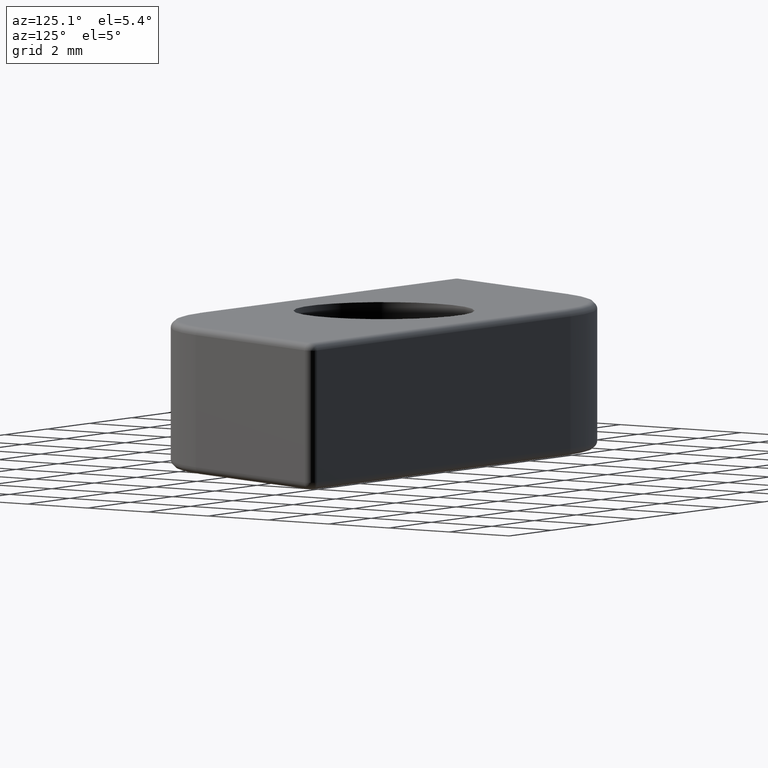
[diagram: clean part render]
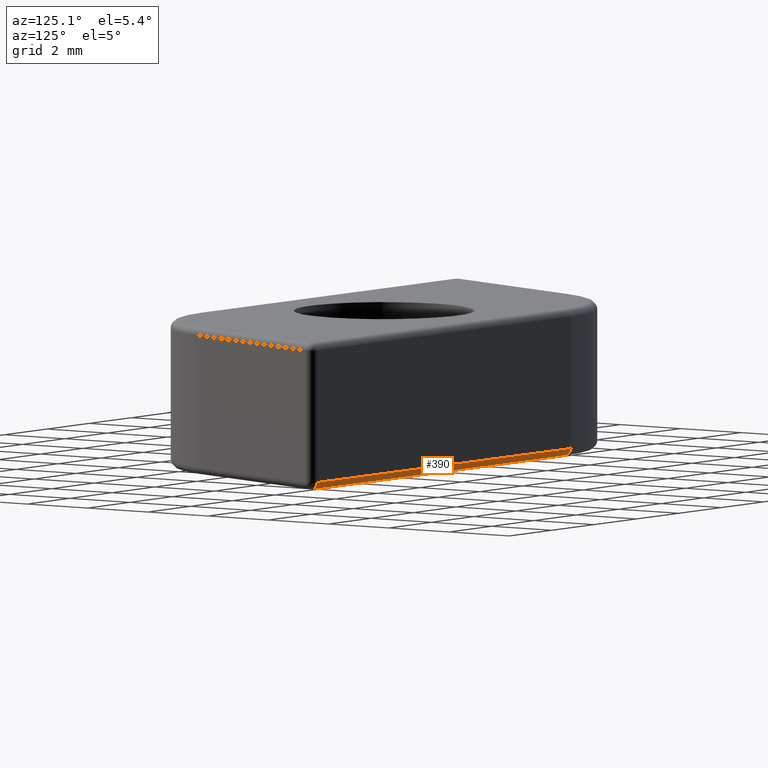
[diagram: same view with one face highlighted and labeled with its STEP entity id]
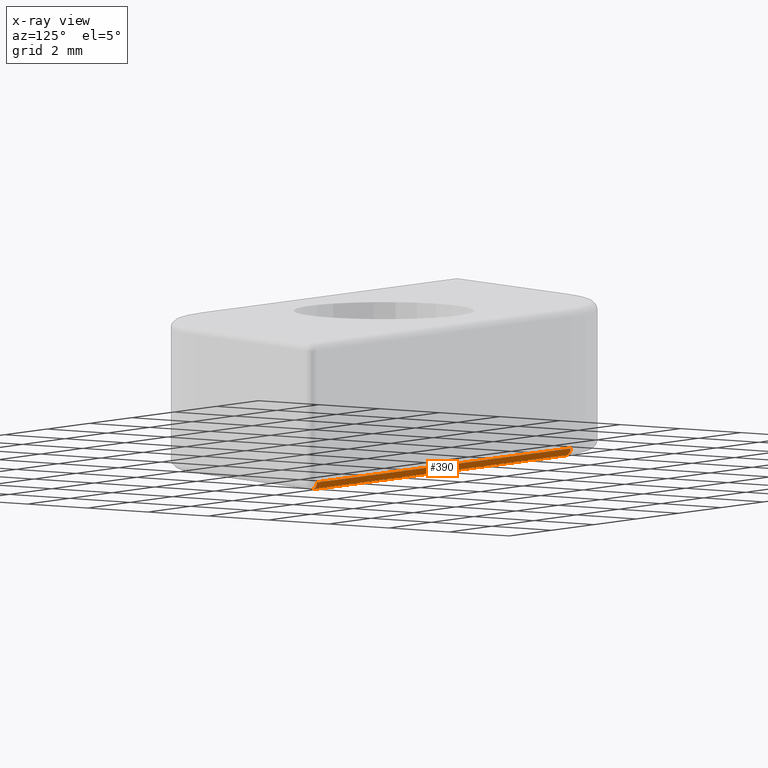
[diagram: x-ray of the same camera — body ghosted, the highlighted face saturated]
A machine part, auxiliary view. The second image highlights one B-rep face of the part: STEP entity #390.
The next image is the same camera in x-ray: the body ghosted, the highlighted face saturated — about 0% of this face is hidden behind the body in this view.
In plain terms, the highlighted cylindrical surface (edge-blend (fillet) strip) has radius 0.2 mm, axis along (-1, -0, 0).
Its self-contained STEP definition (entity closure, byte-faithful):
#37=LINE('',#710,#62);
#38=LINE('',#711,#63);
#62=VECTOR('',#586,10.);
#63=VECTOR('',#587,10.);
#80=CYLINDRICAL_SURFACE('',#468,0.2);
#105=FACE_OUTER_BOUND('',#132,.T.);
#132=EDGE_LOOP('',(#317,#318,#319,#320));
#153=CIRCLE('',#434,0.2);
#162=CIRCLE('',#446,0.2);
#180=VERTEX_POINT('',#634);
#183=VERTEX_POINT('',#639);
#191=VERTEX_POINT('',#658);
#192=VERTEX_POINT('',#660);
#213=EDGE_CURVE('',#180,#183,#153,.T.);
#222=EDGE_CURVE('',#191,#192,#162,.F.);
#248=EDGE_CURVE('',#183,#191,#37,.T.);
#249=EDGE_CURVE('',#192,#180,#38,.T.);
#317=ORIENTED_EDGE('',*,*,#213,.T.);
#318=ORIENTED_EDGE('',*,*,#248,.T.);
#319=ORIENTED_EDGE('',*,*,#222,.T.);
#320=ORIENTED_EDGE('',*,*,#249,.T.);
#390=ADVANCED_FACE('',(#105),#80,.T.);
#434=AXIS2_PLACEMENT_3D('',#641,#502,#503);
#446=AXIS2_PLACEMENT_3D('',#662,#526,#527);
#468=AXIS2_PLACEMENT_3D('',#709,#584,#585);
#502=DIRECTION('center_axis',(1.,0.,0.));
#503=DIRECTION('ref_axis',(0.,0.,-1.));
#526=DIRECTION('center_axis',(1.,0.,5.55111512312578E-15));
#527=DIRECTION('ref_axis',(0.,1.,0.));
#584=DIRECTION('center_axis',(-1.,-7.40154601920732E-17,0.));
#585=DIRECTION('ref_axis',(0.,0.707106781186548,-0.707106781186547));
#586=DIRECTION('',(1.,7.40154601920732E-17,0.));
#587=DIRECTION('',(-1.,-7.40154601920732E-17,0.));
#634=CARTESIAN_POINT('',(-3.25272308672009,3.7,0.));
#639=CARTESIAN_POINT('',(-3.25272308672009,3.9,0.2));
#641=CARTESIAN_POINT('Origin',(-3.25272308672009,3.7,0.2));
#658=CARTESIAN_POINT('',(8.70878984670604,3.9,0.2));
#660=CARTESIAN_POINT('',(8.70878984670604,3.7,0.));
#662=CARTESIAN_POINT('Origin',(8.70878984670604,3.7,0.2));
#709=CARTESIAN_POINT('Origin',(4.5,3.7,0.2));
#710=CARTESIAN_POINT('',(4.5,3.9,0.2));
#711=CARTESIAN_POINT('',(4.5,3.7,0.));